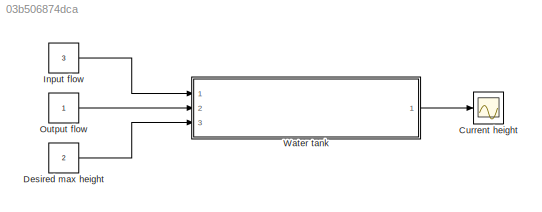
MODEL slx_03b506874dca
KIND model
CONFIG AbsTol = auto
CONFIG EnableMultiTasking = off
CONFIG FixedStep = 0.1
CONFIG MaxStep = auto
CONFIG MinStep = auto
CONFIG RelTol = 1e-3
CONFIG SampleTimeConstraint = Unconstrained
CONFIG SolverName = VariableStepAuto
CONFIG StartTime = 0.0
CONFIG StopTime = 5000
BLOCK [Scope] Current height
  Floating = off
  NumInputPorts = 1
  Ports = [1]
  ScopeSpecificationString = Simulink.scopes.TimeScopeBlockCfg('CurrentConfiguration', extmgr.ConfigurationSet(extmgr.Configuration('Core','General UI',true,'ShowMainToolbar',false,'ShowStatusbar',false),extmgr.Configuration('Core','Source UI',true),extmgr.Configuration('Sources','WiredSimulink',true),extmgr.Configuration('Visuals','Time Domain',true,'SerializedDisplays',{struct('MinYLimReal','-0.24957','MaxYLimReal','2.24613...<+1409ch>
BLOCK [Constant] Desired max height
  Value = 2
BLOCK [Constant] Input flow
  Value = 3
BLOCK [Constant] Output flow
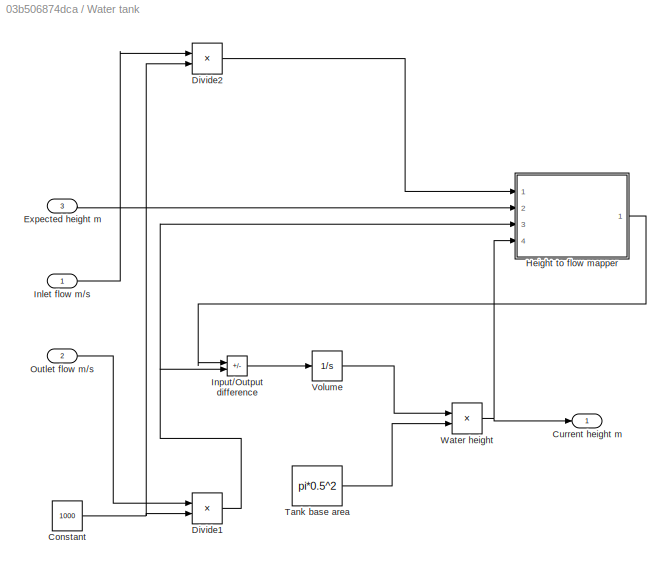
BLOCK [SubSystem] Water tank
  Ports = [3, 1]
  RequestExecContextInheritance = off
BLOCK [Constant] Water tank/Constant
  Value = 1000
BLOCK [Outport] Water tank/Current height m
BLOCK [Product] Water tank/Divide1
  Inputs = */
  Ports = [2, 1]
BLOCK [Product] Water tank/Divide2
  Inputs = */
  Ports = [2, 1]
BLOCK [Inport] Water tank/Expected height m
  Port = 3
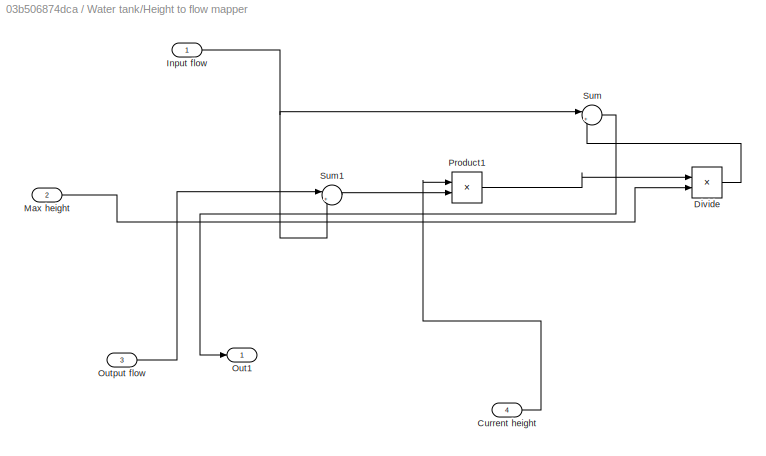
BLOCK [SubSystem] Water tank/Height to flow mapper
  Ports = [4, 1]
  RequestExecContextInheritance = off
BLOCK [Inport] Water tank/Height to flow mapper/Current height
  Port = 4
BLOCK [Product] Water tank/Height to flow mapper/Divide
  Inputs = */
  Ports = [2, 1]
BLOCK [Inport] Water tank/Height to flow mapper/Input flow
BLOCK [Inport] Water tank/Height to flow mapper/Max height
  Port = 2
BLOCK [Outport] Water tank/Height to flow mapper/Out1
BLOCK [Inport] Water tank/Height to flow mapper/Output flow
  Port = 3
BLOCK [Product] Water tank/Height to flow mapper/Product1
  Ports = [2, 1]
BLOCK [Sum] Water tank/Height to flow mapper/Sum
  Inputs = |++
  Ports = [2, 1]
BLOCK [Sum] Water tank/Height to flow mapper/Sum1
  Inputs = |+-
  Ports = [2, 1]
BLOCK [Inport] Water tank/Inlet flow m//s
BLOCK [Sum] Water tank/Input//Output difference
  IconShape = rectangular
  Inputs = |+-
  Ports = [2, 1]
BLOCK [Inport] Water tank/Outlet flow m//s
  Port = 2
BLOCK [Constant] Water tank/Tank base area
  Value = pi*0.5^2
BLOCK [Integrator] Water tank/Volume
  Ports = [1, 1]
BLOCK [Product] Water tank/Water height
  Inputs = */
  Ports = [2, 1]
LINE Desired max height:1 -> Water tank:3
LINE Input flow:1 -> Water tank:1
LINE Output flow:1 -> Water tank:2
NET Water tank/Constant:1 -> Water tank/Divide1:2, Water tank/Divide2:2
NET Water tank/Divide1:1 -> Water tank/Height to flow mapper:3, Water tank/Input//Output difference:2
LINE Water tank/Divide2:1 -> Water tank/Height to flow mapper:1
LINE Water tank/Expected height m:1 -> Water tank/Height to flow mapper:2
LINE Water tank/Height to flow mapper/Current height:1 -> Water tank/Height to flow mapper/Product1:1
LINE Water tank/Height to flow mapper/Divide:1 -> Water tank/Height to flow mapper/Sum:2
NET Water tank/Height to flow mapper/Input flow:1 -> Water tank/Height to flow mapper/Sum1:2, Water tank/Height to flow mapper/Sum:1
LINE Water tank/Height to flow mapper/Max height:1 -> Water tank/Height to flow mapper/Divide:2
LINE Water tank/Height to flow mapper/Output flow:1 -> Water tank/Height to flow mapper/Sum1:1
LINE Water tank/Height to flow mapper/Product1:1 -> Water tank/Height to flow mapper/Divide:1
LINE Water tank/Height to flow mapper/Sum1:1 -> Water tank/Height to flow mapper/Product1:2
LINE Water tank/Height to flow mapper/Sum:1 -> Water tank/Height to flow mapper/Out1:1
LINE Water tank/Height to flow mapper:1 -> Water tank/Input//Output difference:1
LINE Water tank/Inlet flow m//s:1 -> Water tank/Divide2:1
LINE Water tank/Input//Output difference:1 -> Water tank/Volume:1
LINE Water tank/Outlet flow m//s:1 -> Water tank/Divide1:1
LINE Water tank/Tank base area:1 -> Water tank/Water height:2
LINE Water tank/Volume:1 -> Water tank/Water height:1
NET Water tank/Water height:1 -> Water tank/Current height m:1, Water tank/Height to flow mapper:4
LINE Water tank:1 -> Current height:1
note: NET lines group one-source signal fan-out (src -> all destinations, sorted); 1:1 wires keep LINE
